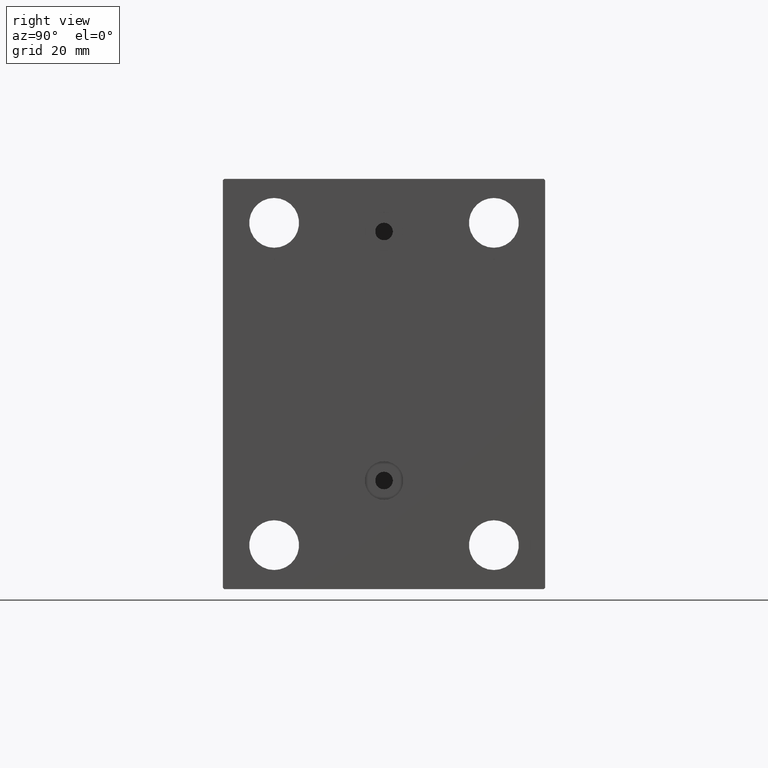
[diagram: clean part render]
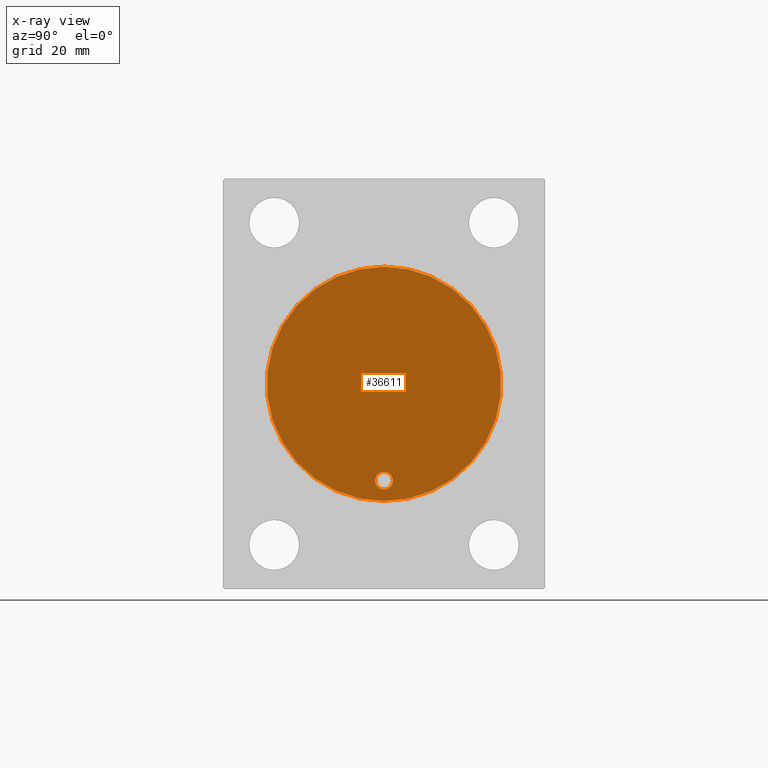
[diagram: x-ray — body ghosted, one internal face saturated and labeled with its STEP entity id]
A machine part, right view, then the same camera in x-ray: the body is ghosted and one INTERNAL B-rep face — a face not visible from any outside direction — is saturated and labeled: STEP entity #36611.
In plain terms, the highlighted planar face has unit normal (-1, 0, 0).
Its self-contained STEP definition (entity closure, byte-faithful):
#387 = CARTESIAN_POINT ( 'NONE',  ( 51.00000000000000000, 0.000000000000000000, 0.000000000000000000 ) ) ;
#586 = VERTEX_POINT ( 'NONE', #40823 ) ;
#623 = FACE_OUTER_BOUND ( 'NONE', #11118, .T. ) ;
#748 = VERTEX_POINT ( 'NONE', #16664 ) ;
#2565 = EDGE_CURVE ( 'NONE', #748, #10777, #15791, .T. ) ;
#4223 = EDGE_CURVE ( 'NONE', #586, #30718, #14344, .T. ) ;
#4573 = AXIS2_PLACEMENT_3D ( 'NONE', #13243, #8875, #27263 ) ;
#7533 = DIRECTION ( 'NONE',  ( 0.000000000000000000, 0.000000000000000000, 1.000000000000000000 ) ) ;
#8752 = CIRCLE ( 'NONE', #19085, 3.000000000000002665 ) ;
#8875 = DIRECTION ( 'NONE',  ( -1.000000000000000000, 0.000000000000000000, 0.000000000000000000 ) ) ;
#9768 = ORIENTED_EDGE ( 'NONE', *, *, #2565, .F. ) ;
#10777 = VERTEX_POINT ( 'NONE', #14069 ) ;
#11093 = DIRECTION ( 'NONE',  ( 0.000000000000000000, 0.000000000000000000, 1.000000000000000000 ) ) ;
#11118 = EDGE_LOOP ( 'NONE', ( #23888, #16959 ) ) ;
#13243 = CARTESIAN_POINT ( 'NONE',  ( 51.00000000000000000, 0.000000000000000000, 0.000000000000000000 ) ) ;
#14069 = CARTESIAN_POINT ( 'NONE',  ( 51.00000000000000000, 4.041334437186266200E-15, -36.00000000000000711 ) ) ;
#14344 = CIRCLE ( 'NONE', #40065, 40.00000000000000000 ) ;
#14442 = DIRECTION ( 'NONE',  ( -1.000000000000000000, 0.000000000000000000, 0.000000000000000000 ) ) ;
#15791 = CIRCLE ( 'NONE', #42237, 3.000000000000002665 ) ;
#16287 = CARTESIAN_POINT ( 'NONE',  ( 51.00000000000000000, 0.000000000000000000, 40.00000000000000000 ) ) ;
#16347 = CIRCLE ( 'NONE', #4573, 40.00000000000000000 ) ;
#16363 = DIRECTION ( 'NONE',  ( -1.000000000000000000, 0.000000000000000000, 0.000000000000000000 ) ) ;
#16664 = CARTESIAN_POINT ( 'NONE',  ( 51.00000000000000000, 4.408728476930471644E-15, -30.00000000000000000 ) ) ;
#16959 = ORIENTED_EDGE ( 'NONE', *, *, #4223, .T. ) ;
#18463 = DIRECTION ( 'NONE',  ( -1.000000000000000000, 0.000000000000000000, 0.000000000000000000 ) ) ;
#19085 = AXIS2_PLACEMENT_3D ( 'NONE', #34081, #16363, #33622 ) ;
#22366 = EDGE_LOOP ( 'NONE', ( #43985, #9768 ) ) ;
#23888 = ORIENTED_EDGE ( 'NONE', *, *, #34631, .T. ) ;
#26679 = AXIS2_PLACEMENT_3D ( 'NONE', #387, #14442, #7533 ) ;
#26733 = EDGE_CURVE ( 'NONE', #10777, #748, #8752, .T. ) ;
#27263 = DIRECTION ( 'NONE',  ( 0.000000000000000000, 0.000000000000000000, 1.000000000000000000 ) ) ;
#29153 = FACE_BOUND ( 'NONE', #22366, .T. ) ;
#30718 = VERTEX_POINT ( 'NONE', #16287 ) ;
#31928 = PLANE ( 'NONE',  #26679 ) ;
#33622 = DIRECTION ( 'NONE',  ( 0.000000000000000000, 0.000000000000000000, 1.000000000000000000 ) ) ;
#34081 = CARTESIAN_POINT ( 'NONE',  ( 51.00000000000000000, 4.041334437186266200E-15, -33.00000000000000000 ) ) ;
#34631 = EDGE_CURVE ( 'NONE', #30718, #586, #16347, .T. ) ;
#35882 = DIRECTION ( 'NONE',  ( 0.000000000000000000, 0.000000000000000000, 1.000000000000000000 ) ) ;
#36611 = ADVANCED_FACE ( 'NONE', ( #29153, #623 ), #31928, .T. ) ;
#36616 = CARTESIAN_POINT ( 'NONE',  ( 51.00000000000000000, 4.041334437186266200E-15, -33.00000000000000000 ) ) ;
#40065 = AXIS2_PLACEMENT_3D ( 'NONE', #45554, #42324, #35882 ) ;
#40823 = CARTESIAN_POINT ( 'NONE',  ( 51.00000000000000000, 4.898587196589413026E-15, -40.00000000000000000 ) ) ;
#42237 = AXIS2_PLACEMENT_3D ( 'NONE', #36616, #18463, #11093 ) ;
#42324 = DIRECTION ( 'NONE',  ( -1.000000000000000000, 0.000000000000000000, 0.000000000000000000 ) ) ;
#43985 = ORIENTED_EDGE ( 'NONE', *, *, #26733, .F. ) ;
#45554 = CARTESIAN_POINT ( 'NONE',  ( 51.00000000000000000, 0.000000000000000000, 0.000000000000000000 ) ) ;